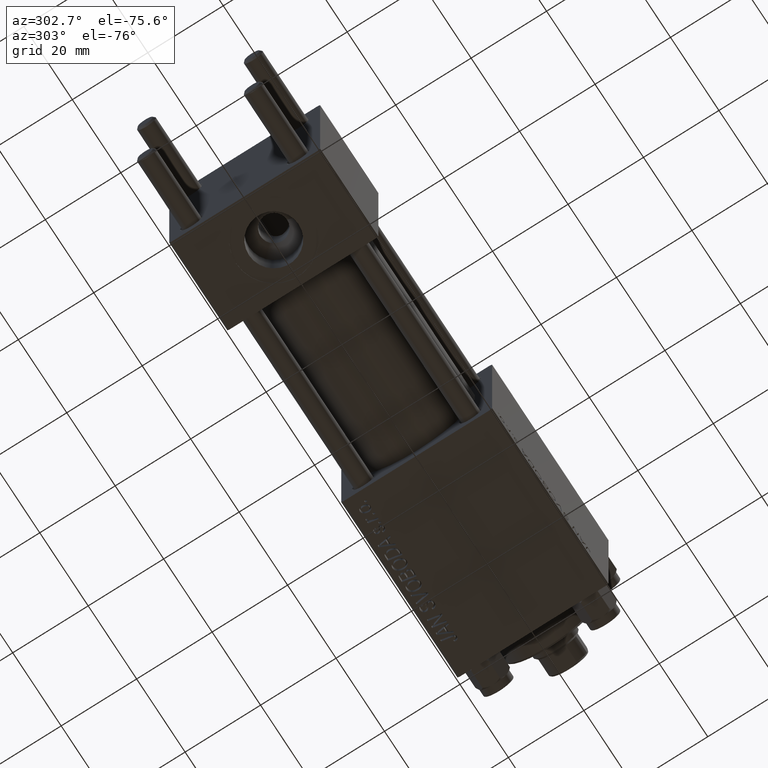
[diagram: clean part render]
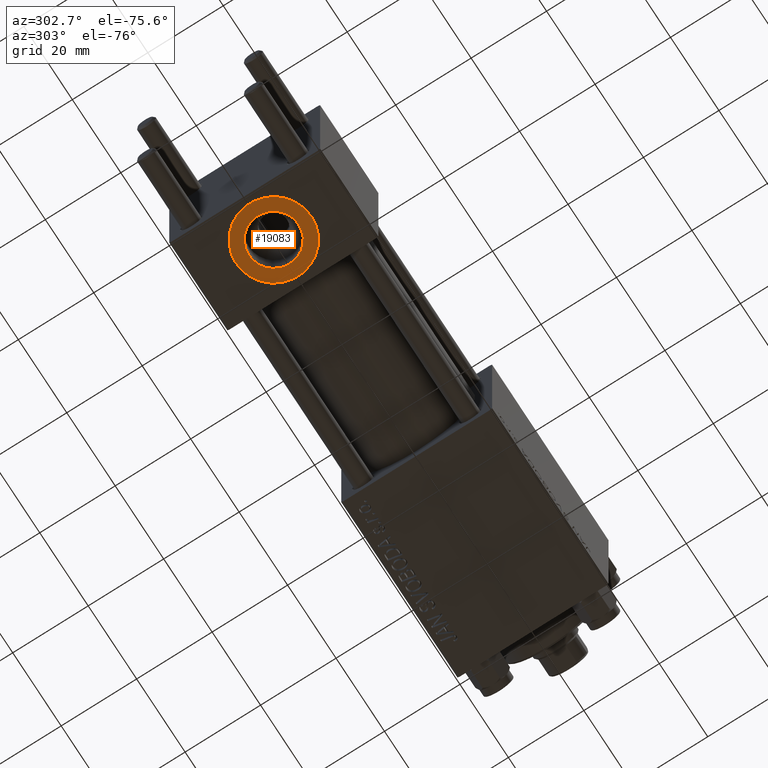
[diagram: same view with one face highlighted and labeled with its STEP entity id]
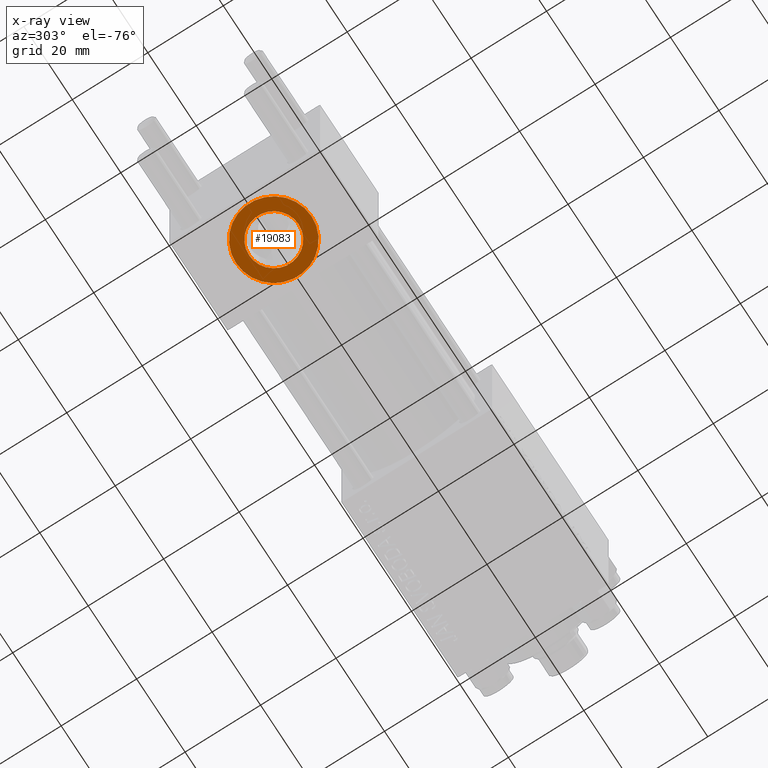
[diagram: x-ray of the same camera — body ghosted, the highlighted face saturated]
A machine part, auxiliary view. The second image highlights one B-rep face of the part: STEP entity #19083.
The next image is the same camera in x-ray: the body ghosted, the highlighted face saturated — about 0% of this face is hidden behind the body in this view.
In plain terms, the highlighted planar face has unit normal (0, -0, -1).
Its self-contained STEP definition (entity closure, byte-faithful):
#538 = VERTEX_POINT ( 'NONE', #32419 ) ;
#544 = DIRECTION ( 'NONE',  ( 0.000000000000000000, -1.734723475976806848E-16, -1.000000000000000000 ) ) ;
#3513 = EDGE_CURVE ( 'NONE', #24897, #27175, #23193, .T. ) ;
#4705 = EDGE_LOOP ( 'NONE', ( #42244, #20306 ) ) ;
#7352 = EDGE_CURVE ( 'NONE', #22492, #538, #37713, .T. ) ;
#9541 = CIRCLE ( 'NONE', #18416, 10.00000000000000178 ) ;
#9717 = DIRECTION ( 'NONE',  ( 0.000000000000000000, 1.000000000000000000, 0.000000000000000000 ) ) ;
#11109 = AXIS2_PLACEMENT_3D ( 'NONE', #38881, #19720, #39371 ) ;
#13870 = EDGE_LOOP ( 'NONE', ( #29340, #17614 ) ) ;
#16704 = CARTESIAN_POINT ( 'NONE',  ( 12.00000000000000000, -4.904328641410901403E-15, -19.80000000000000426 ) ) ;
#17408 = EDGE_CURVE ( 'NONE', #27175, #24897, #9541, .T. ) ;
#17543 = CARTESIAN_POINT ( 'NONE',  ( 12.00000000000000000, -4.904328641410902191E-15, -19.80000000000000426 ) ) ;
#17614 = ORIENTED_EDGE ( 'NONE', *, *, #28573, .F. ) ;
#18180 = CARTESIAN_POINT ( 'NONE',  ( 12.00000000000000000, -4.904328641410901403E-15, -19.80000000000000426 ) ) ;
#18416 = AXIS2_PLACEMENT_3D ( 'NONE', #18180, #21975, #29532 ) ;
#19083 = ADVANCED_FACE ( 'NONE', ( #32092, #23550 ), #35135, .T. ) ;
#19720 = DIRECTION ( 'NONE',  ( 0.000000000000000000, -1.734723475976806848E-16, -1.000000000000000000 ) ) ;
#20306 = ORIENTED_EDGE ( 'NONE', *, *, #3513, .T. ) ;
#20505 = DIRECTION ( 'NONE',  ( 0.000000000000000000, 1.000000000000000000, -1.734723475976806848E-16 ) ) ;
#20590 = DIRECTION ( 'NONE',  ( 0.000000000000000000, -1.734723475976806848E-16, -1.000000000000000000 ) ) ;
#21975 = DIRECTION ( 'NONE',  ( 0.000000000000000000, -1.734723475976806848E-16, -1.000000000000000000 ) ) ;
#22492 = VERTEX_POINT ( 'NONE', #25218 ) ;
#22536 = AXIS2_PLACEMENT_3D ( 'NONE', #16704, #544, #20505 ) ;
#22822 = CIRCLE ( 'NONE', #35699, 6.580000000000000071 ) ;
#23193 = CIRCLE ( 'NONE', #11109, 10.00000000000000178 ) ;
#23550 = FACE_OUTER_BOUND ( 'NONE', #4705, .T. ) ;
#24897 = VERTEX_POINT ( 'NONE', #38575 ) ;
#25218 = CARTESIAN_POINT ( 'NONE',  ( 12.00000000000000000, 6.579999999999994742, -19.80000000000000426 ) ) ;
#27175 = VERTEX_POINT ( 'NONE', #35451 ) ;
#28573 = EDGE_CURVE ( 'NONE', #538, #22492, #22822, .T. ) ;
#29340 = ORIENTED_EDGE ( 'NONE', *, *, #7352, .F. ) ;
#29532 = DIRECTION ( 'NONE',  ( 0.000000000000000000, 1.000000000000000000, 0.000000000000000000 ) ) ;
#32092 = FACE_BOUND ( 'NONE', #13870, .T. ) ;
#32419 = CARTESIAN_POINT ( 'NONE',  ( 12.00000000000000000, -6.580000000000006288, -19.80000000000000426 ) ) ;
#35135 = PLANE ( 'NONE',  #22536 ) ;
#35451 = CARTESIAN_POINT ( 'NONE',  ( 12.00000000000000000, 9.999999999999996447, -19.80000000000000426 ) ) ;
#35699 = AXIS2_PLACEMENT_3D ( 'NONE', #36791, #40820, #49161 ) ;
#36791 = CARTESIAN_POINT ( 'NONE',  ( 12.00000000000000000, -4.904328641410902191E-15, -19.80000000000000426 ) ) ;
#37713 = CIRCLE ( 'NONE', #48211, 6.580000000000000071 ) ;
#38575 = CARTESIAN_POINT ( 'NONE',  ( 12.00000000000000178, -10.00000000000000711, -19.80000000000000426 ) ) ;
#38881 = CARTESIAN_POINT ( 'NONE',  ( 12.00000000000000000, -4.904328641410901403E-15, -19.80000000000000426 ) ) ;
#39371 = DIRECTION ( 'NONE',  ( 0.000000000000000000, 1.000000000000000000, 0.000000000000000000 ) ) ;
#40820 = DIRECTION ( 'NONE',  ( 0.000000000000000000, -1.734723475976806848E-16, -1.000000000000000000 ) ) ;
#42244 = ORIENTED_EDGE ( 'NONE', *, *, #17408, .T. ) ;
#48211 = AXIS2_PLACEMENT_3D ( 'NONE', #17543, #20590, #9717 ) ;
#49161 = DIRECTION ( 'NONE',  ( 0.000000000000000000, 1.000000000000000000, 0.000000000000000000 ) ) ;